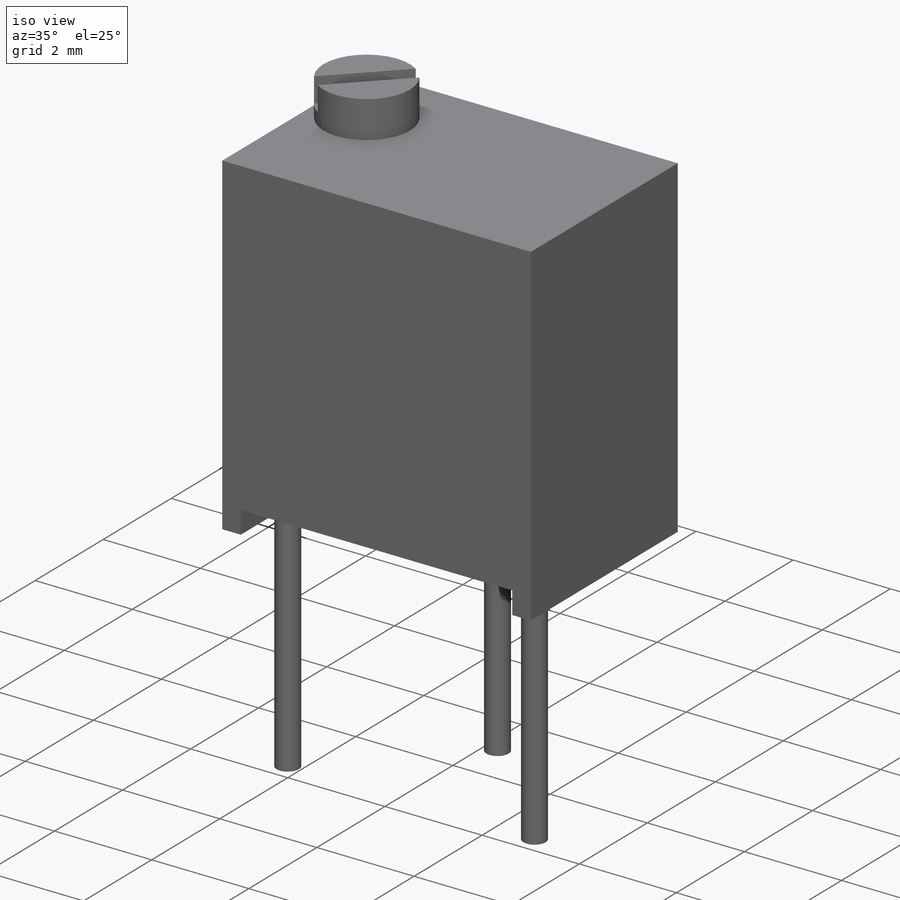
[diagram: iso view]
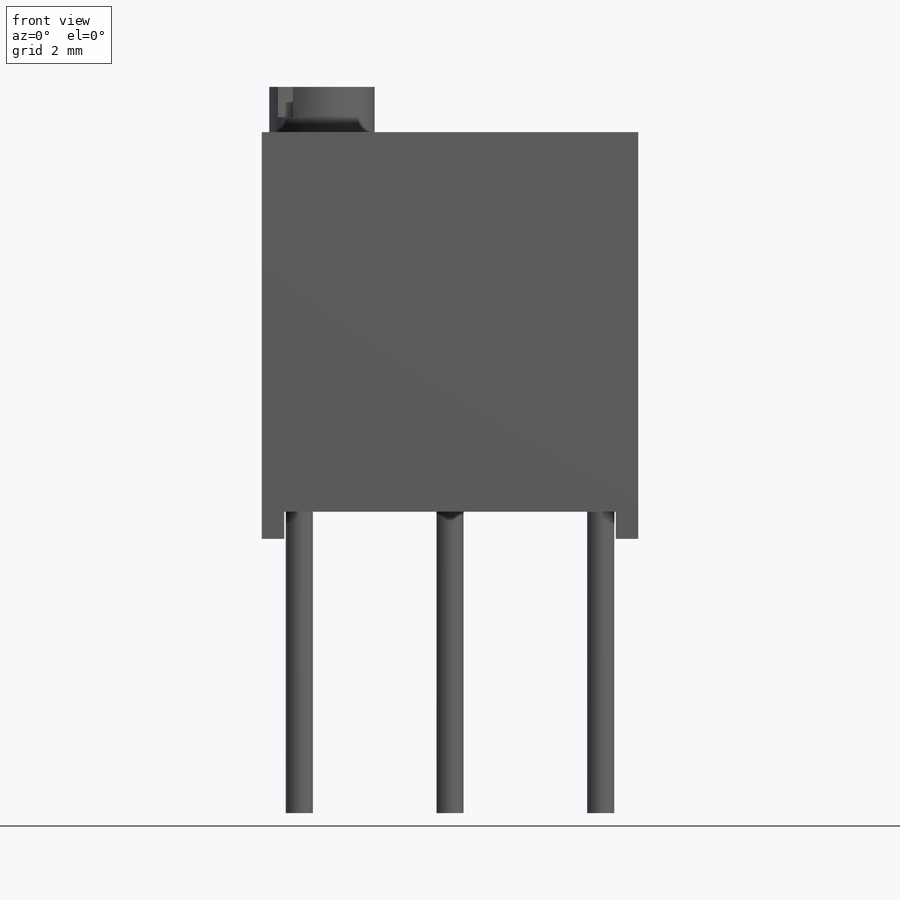
[diagram: front view]
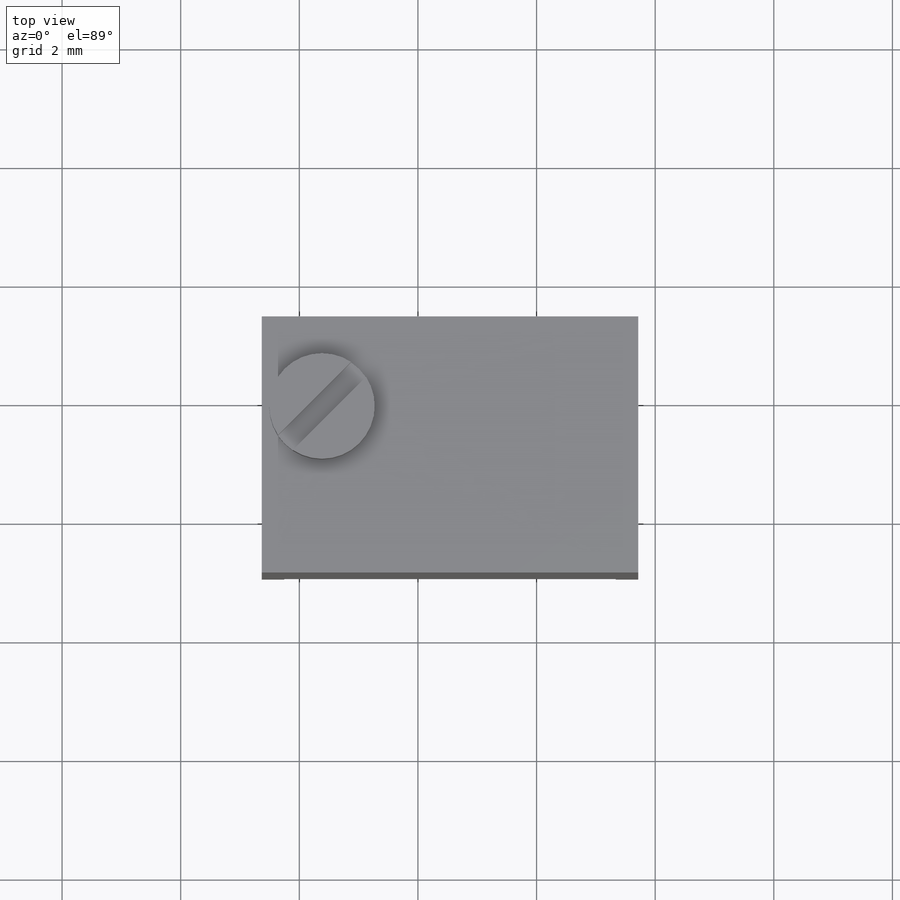
[diagram: top view]
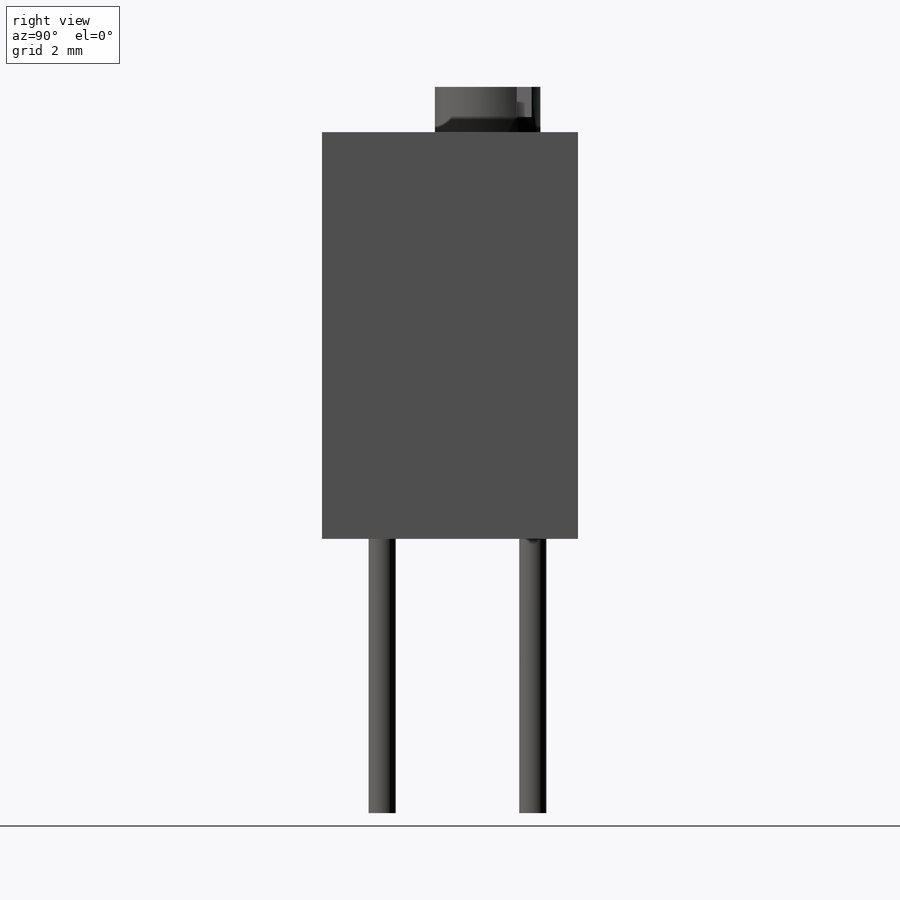
[diagram: right view]
SOLIDWORKS PART (.sldprt)
format: sldprt  version: not decoded by parser v0  size: 212,992 bytes
history: native  units: mm
features: sketch x6, extrude x3, cut_extrude x2, material x1 (+12 scaffold rows collapsed)
feature tree (24):
  scaffold x12  (default folders/planes/origin — collapsed)
  material  "Material <not specified>"
  sketch  "Sketch3"  dims[D1=0.635mm D2=6.35mm D3=0.254mm D4=6.858mm]
  extrude  "Base-Extrude"  Depth=3.302mm
  sketch  "Sketch4"  dims[D1=0.4572mm D2=0.381mm D3=0.381mm]
  cut_extrude  "Cut-Extrude1"  [1 undecoded]
  sketch  "Sketch5"  dims[D3=1.778mm D1=1.524mm D2=1.016mm]
  extrude  "Boss-Extrude1"  Depth=0.762mm
  sketch  "Sketch6"  dims[c1.D1=0.3556mm c1.D2=0.1778mm c1.D3=~1.75385mm c2.D3=45.0deg c2.D4=1.27mm c2.D5=1.27mm]
  cut_extrude  "Cut-Extrude2"  Depth=0.508mm
  sketch  "Sketch7"  dims[D1=0.4572mm D2=5.08mm D3=2.54mm D4=2.54mm]
  extrude  "Boss-Extrude2"  Depth=5.08mm
  sketch  "Component_Outline"
decode coverage: 9 of 11 modeling features carry decoded parameters
note: ~ marks probable driven/reference dimensions
note: 1 parameter value undecoded
note: suppression state not decoded; provenance and decode notes live in map.json
